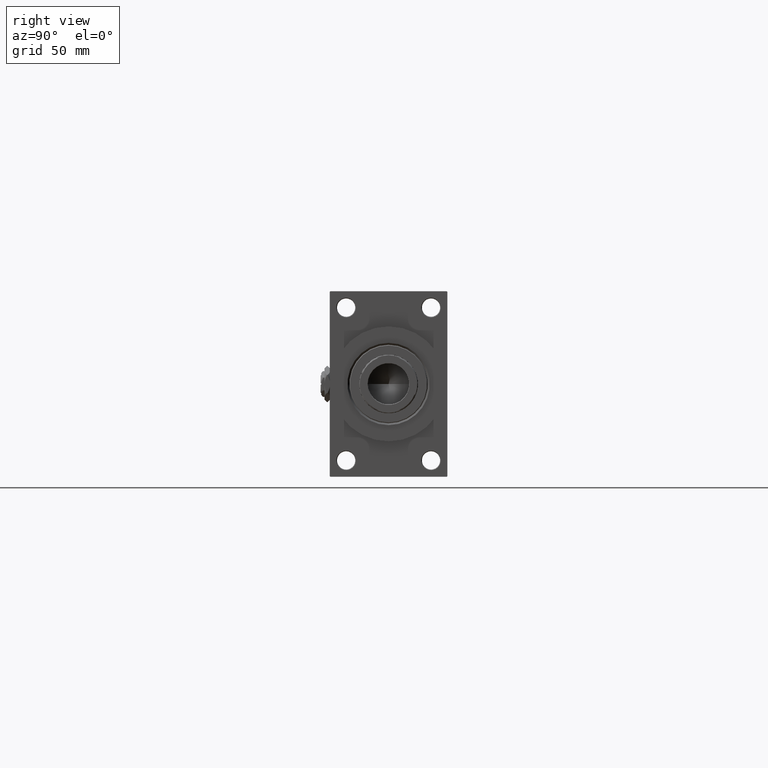
[diagram: clean part render]
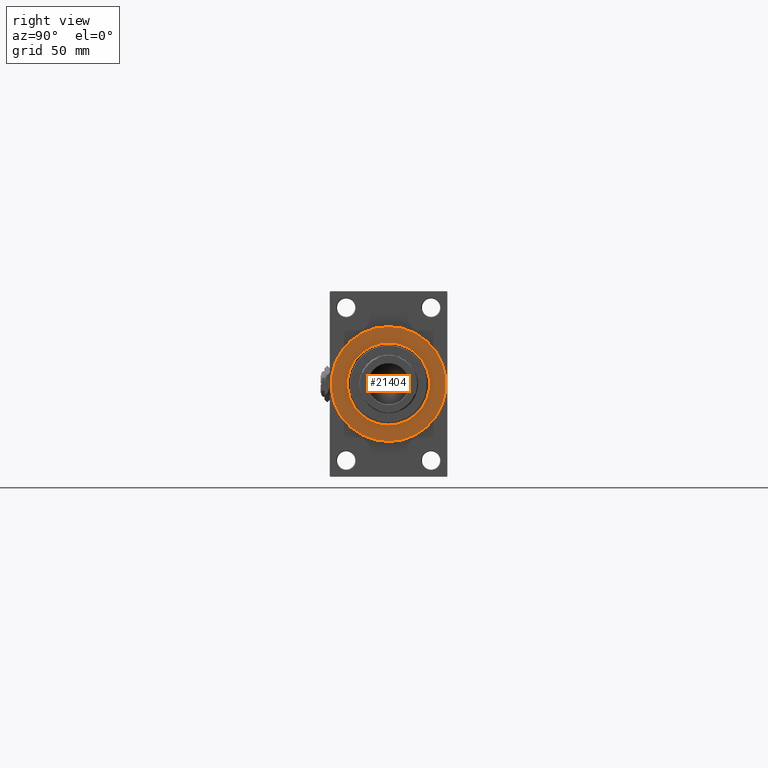
[diagram: same view with one face highlighted and labeled with its STEP entity id]
A machine part, right view. The second image highlights one B-rep face of the part: STEP entity #21404.
In plain terms, the highlighted planar face has unit normal (1, 0, 0).
Its self-contained STEP definition (entity closure, byte-faithful):
#158 = CARTESIAN_POINT ( 'NONE',  ( 486.0000000000000000, 5.388445916248353619E-15, -44.00000000000000000 ) ) ;
#361 = AXIS2_PLACEMENT_3D ( 'NONE', #40729, #36979, #6094 ) ;
#699 = AXIS2_PLACEMENT_3D ( 'NONE', #1540, #20682, #46854 ) ;
#1540 = CARTESIAN_POINT ( 'NONE',  ( 486.0000000000000000, 0.000000000000000000, 0.000000000000000000 ) ) ;
#5593 = CIRCLE ( 'NONE', #11156, 44.00000000000000000 ) ;
#6094 = DIRECTION ( 'NONE',  ( 0.000000000000000000, 0.000000000000000000, -1.000000000000000000 ) ) ;
#6546 = DIRECTION ( 'NONE',  ( 1.000000000000000000, 0.000000000000000000, 0.000000000000000000 ) ) ;
#8390 = CARTESIAN_POINT ( 'NONE',  ( 486.0000000000000000, 0.000000000000000000, 0.000000000000000000 ) ) ;
#9174 = VERTEX_POINT ( 'NONE', #43538 ) ;
#10976 = ORIENTED_EDGE ( 'NONE', *, *, #26572, .T. ) ;
#11156 = AXIS2_PLACEMENT_3D ( 'NONE', #40673, #6546, #21719 ) ;
#11674 = DIRECTION ( 'NONE',  ( -1.000000000000000000, -0.000000000000000000, -0.000000000000000000 ) ) ;
#11984 = EDGE_CURVE ( 'NONE', #9174, #14117, #39283, .T. ) ;
#14117 = VERTEX_POINT ( 'NONE', #158 ) ;
#15629 = PLANE ( 'NONE',  #15648 ) ;
#15648 = AXIS2_PLACEMENT_3D ( 'NONE', #8390, #23567, #38775 ) ;
#16212 = EDGE_LOOP ( 'NONE', ( #25977, #10976 ) ) ;
#18342 = ORIENTED_EDGE ( 'NONE', *, *, #31760, .T. ) ;
#18990 = CIRCLE ( 'NONE', #46824, 31.49999999999991829 ) ;
#19411 = CARTESIAN_POINT ( 'NONE',  ( 486.0000000000000000, 3.857637417314152434E-15, 31.49999999999991829 ) ) ;
#20682 = DIRECTION ( 'NONE',  ( -1.000000000000000000, -0.000000000000000000, -0.000000000000000000 ) ) ;
#21404 = ADVANCED_FACE ( 'NONE', ( #31148, #42774 ), #15629, .T. ) ;
#21719 = DIRECTION ( 'NONE',  ( 0.000000000000000000, 0.000000000000000000, -1.000000000000000000 ) ) ;
#23567 = DIRECTION ( 'NONE',  ( 1.000000000000000000, 0.000000000000000000, 0.000000000000000000 ) ) ;
#24928 = EDGE_CURVE ( 'NONE', #42345, #44887, #30115, .T. ) ;
#25977 = ORIENTED_EDGE ( 'NONE', *, *, #24928, .T. ) ;
#26572 = EDGE_CURVE ( 'NONE', #44887, #42345, #18990, .T. ) ;
#30115 = CIRCLE ( 'NONE', #699, 31.49999999999991829 ) ;
#31063 = DIRECTION ( 'NONE',  ( 0.000000000000000000, 0.000000000000000000, -1.000000000000000000 ) ) ;
#31148 = FACE_BOUND ( 'NONE', #16212, .T. ) ;
#31760 = EDGE_CURVE ( 'NONE', #14117, #9174, #5593, .T. ) ;
#36207 = ORIENTED_EDGE ( 'NONE', *, *, #11984, .T. ) ;
#36979 = DIRECTION ( 'NONE',  ( 1.000000000000000000, 0.000000000000000000, 0.000000000000000000 ) ) ;
#38775 = DIRECTION ( 'NONE',  ( 0.000000000000000000, 0.000000000000000000, -1.000000000000000000 ) ) ;
#39283 = CIRCLE ( 'NONE', #361, 44.00000000000000000 ) ;
#40673 = CARTESIAN_POINT ( 'NONE',  ( 486.0000000000000000, 0.000000000000000000, 0.000000000000000000 ) ) ;
#40729 = CARTESIAN_POINT ( 'NONE',  ( 486.0000000000000000, 0.000000000000000000, 0.000000000000000000 ) ) ;
#42345 = VERTEX_POINT ( 'NONE', #42732 ) ;
#42732 = CARTESIAN_POINT ( 'NONE',  ( 486.0000000000000000, 0.000000000000000000, -31.49999999999991829 ) ) ;
#42774 = FACE_OUTER_BOUND ( 'NONE', #49100, .T. ) ;
#43538 = CARTESIAN_POINT ( 'NONE',  ( 486.0000000000000000, 0.000000000000000000, 44.00000000000000000 ) ) ;
#44887 = VERTEX_POINT ( 'NONE', #19411 ) ;
#45560 = CARTESIAN_POINT ( 'NONE',  ( 486.0000000000000000, 0.000000000000000000, 0.000000000000000000 ) ) ;
#46824 = AXIS2_PLACEMENT_3D ( 'NONE', #45560, #11674, #31063 ) ;
#46854 = DIRECTION ( 'NONE',  ( 0.000000000000000000, 0.000000000000000000, -1.000000000000000000 ) ) ;
#49100 = EDGE_LOOP ( 'NONE', ( #36207, #18342 ) ) ;